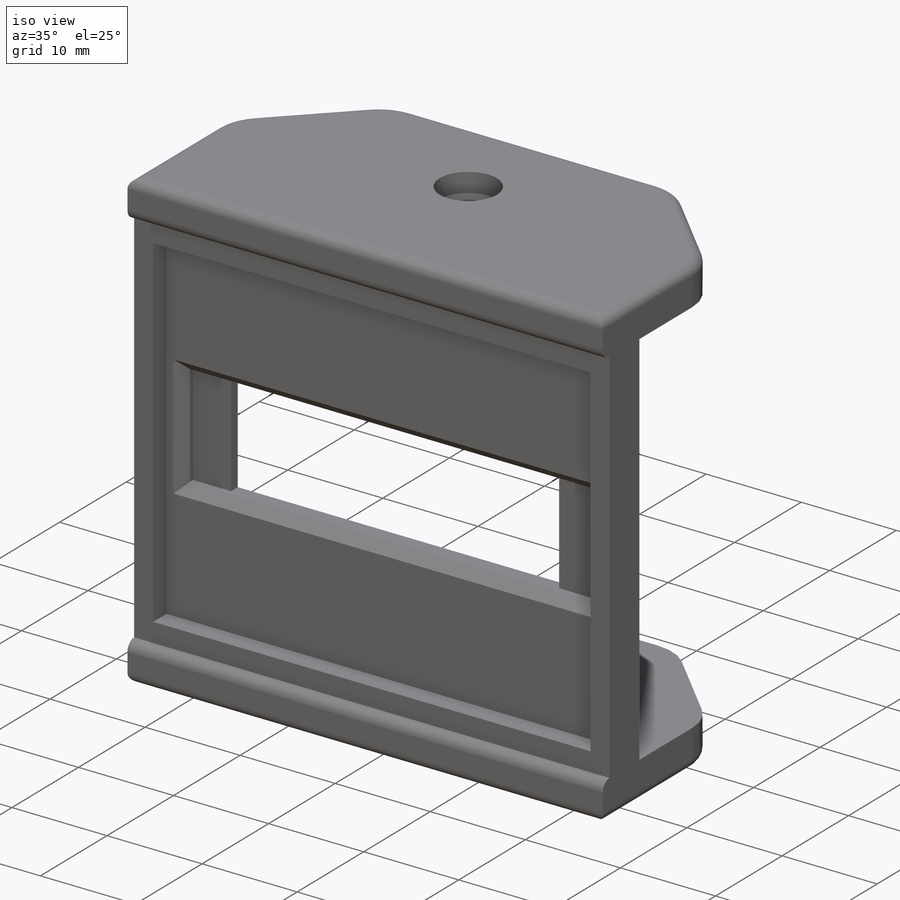
[diagram: iso view]
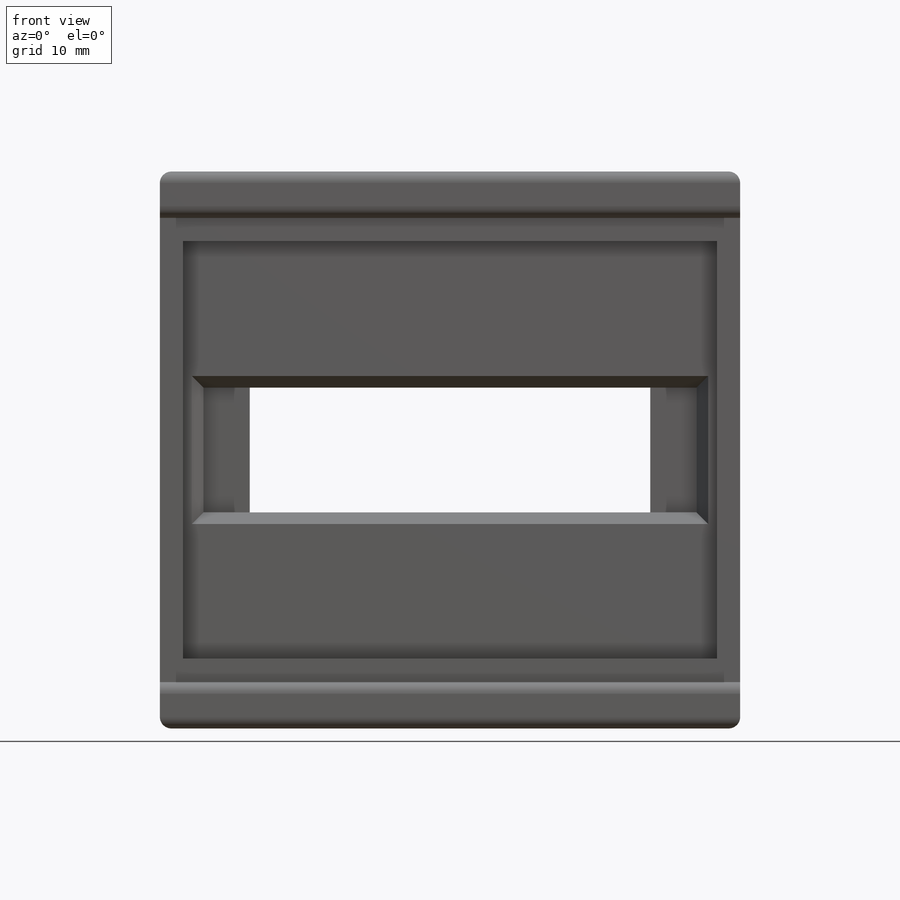
[diagram: front view]
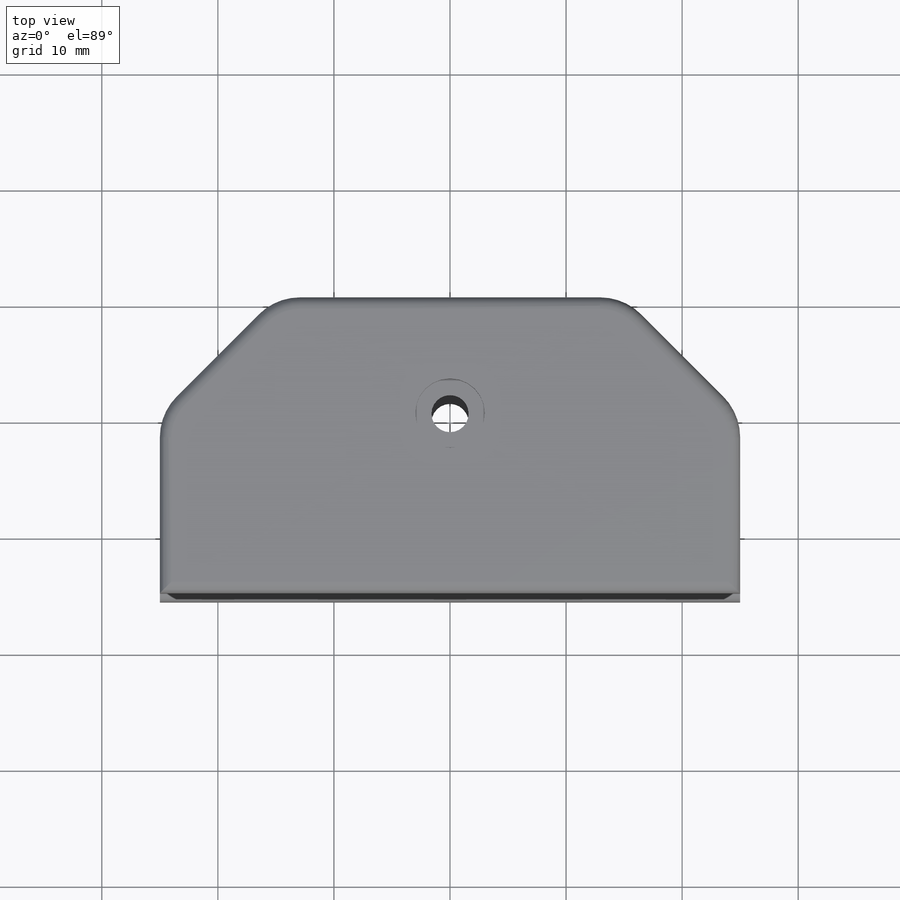
[diagram: top view]
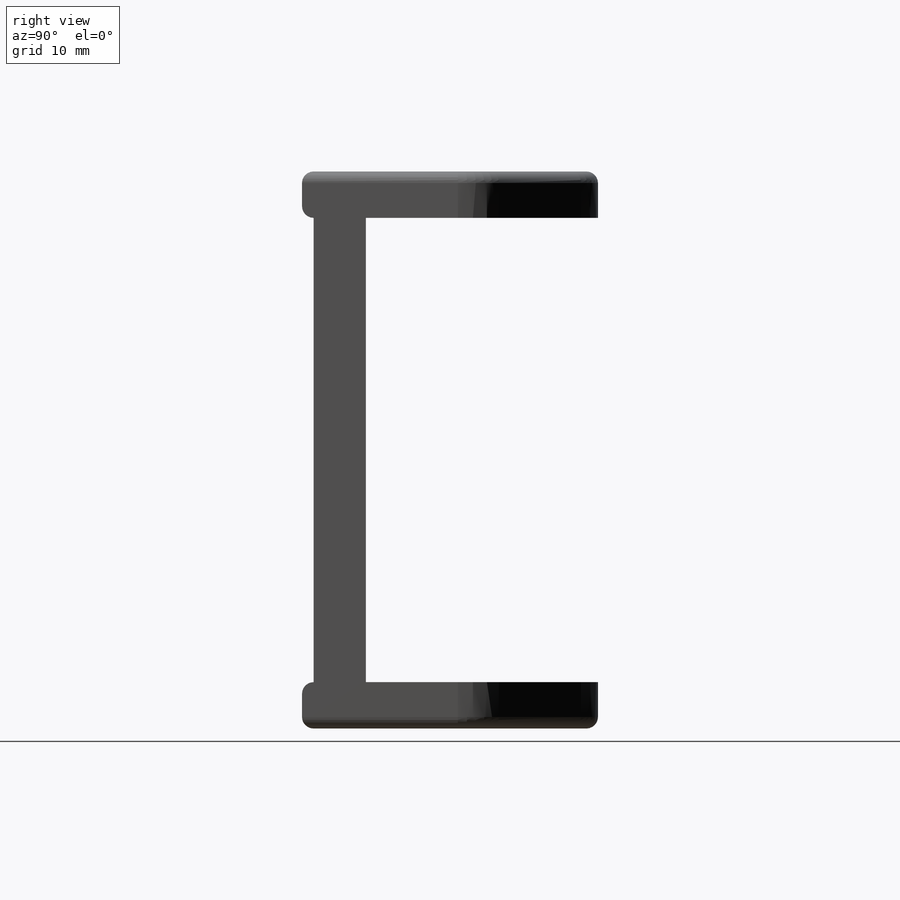
[diagram: right view]
SOLIDWORKS PART (.sldprt)
format: sldprt  version: not decoded by parser v0  size: 586,240 bytes
history: native  units: mm
features: sketch x8, cut_extrude x4, extrude x3, fillet x3, chamfer x2, material x1 (+13 scaffold rows collapsed)
feature tree (34):
  scaffold x13  (default folders/planes/origin — collapsed)
  material  "Material <not specified>"
  sketch  "Sketch1"  dims[D1=50.0mm D2=40.0mm D3=7.75mm D4=18.0mm D5=10.75mm]
  extrude  "Boss-Extrude1"  Depth=2.5mm
  sketch  "Sketch2"  dims[D1=4.0mm]
  cut_extrude  "Cut-Extrude1"  Depth=1mm
  sketch  "Sketch3"  dims[D1=2.0mm]
  extrude  "Boss-Extrude2"  Depth=2mm
  sketch  "Sketch4"  dims[D1=4.0mm D2=4.0mm]
  extrude  "Boss-Extrude3"  Depth=20mm
  sketch  "Sketch5"  dims[D1=3.2mm]
  cut_extrude  "Cut-Extrude2"  Depth=20mm
  sketch  "Sketch6"  dims[D1=6.0mm]
  cut_extrude  "Cut-Extrude3"  Depth=2mm
  sketch  "Sketch7"  dims[D1=6.0mm]
  cut_extrude  "Cut-Extrude4"  Depth=2mm
  sketch  "Sketch10"  dims[D1=0.25mm]
  chamfer  "Chamfer1"  Distance=10mm Angle=45deg
  fillet  "Fillet1"  Radius=5mm
  fillet  "Fillet2"  Radius=1mm
  fillet  "Fillet3"  Radius=1mm
  chamfer  "Chamfer2"  Distance=1mm Angle=45deg
decode coverage: 20 of 20 modeling features carry decoded parameters
note: suppression state not decoded; provenance and decode notes live in map.json
